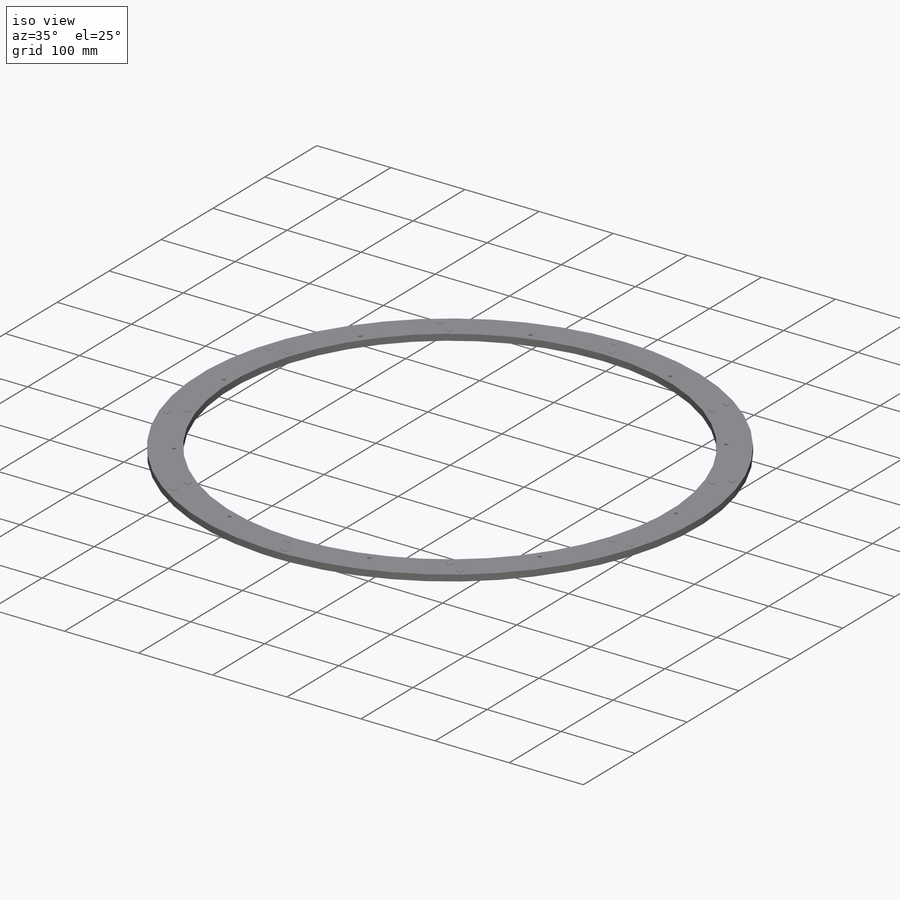
[diagram: iso view]
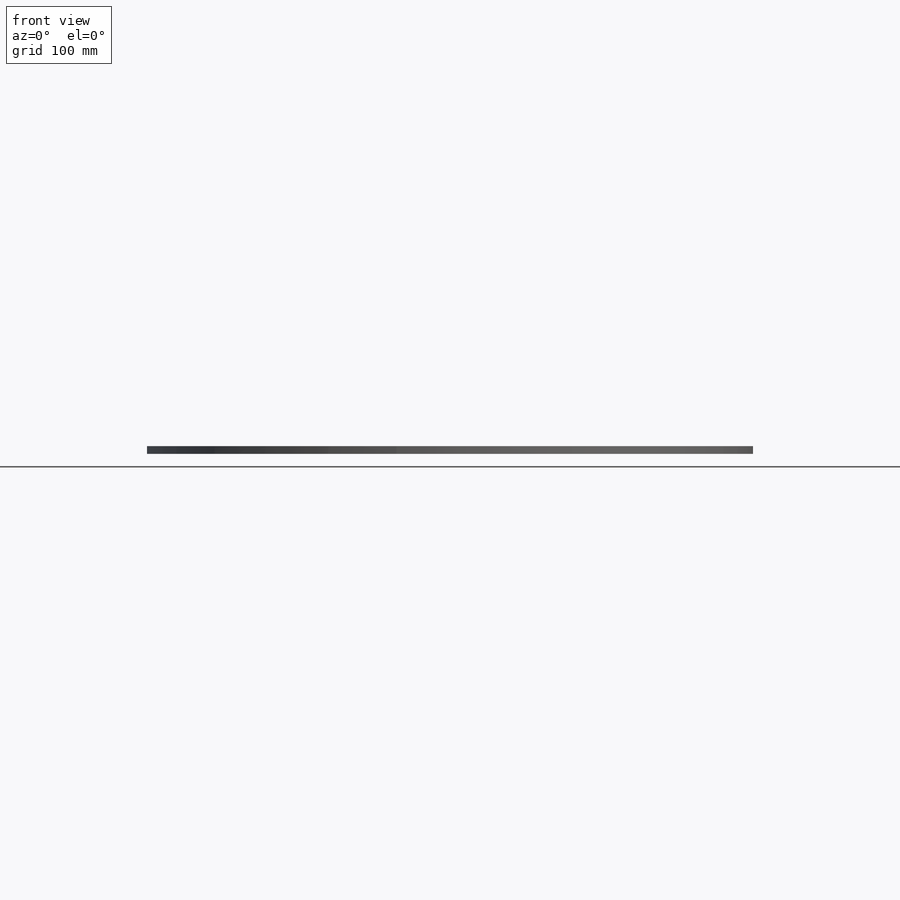
[diagram: front view]
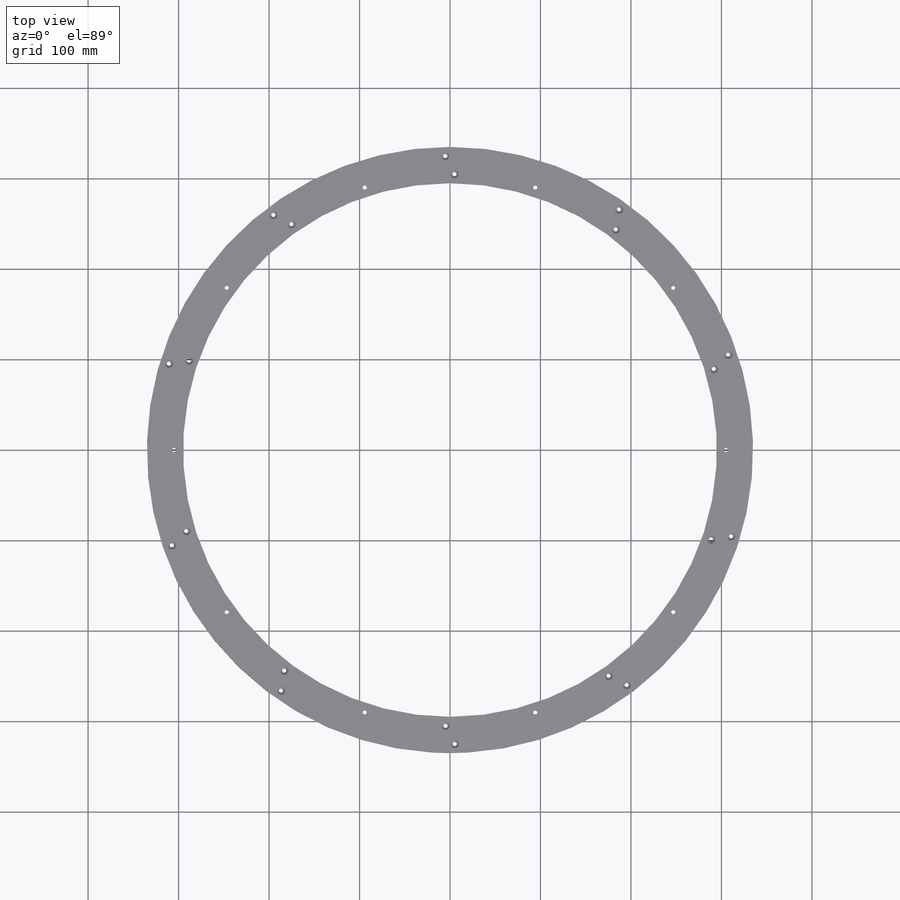
[diagram: top view]
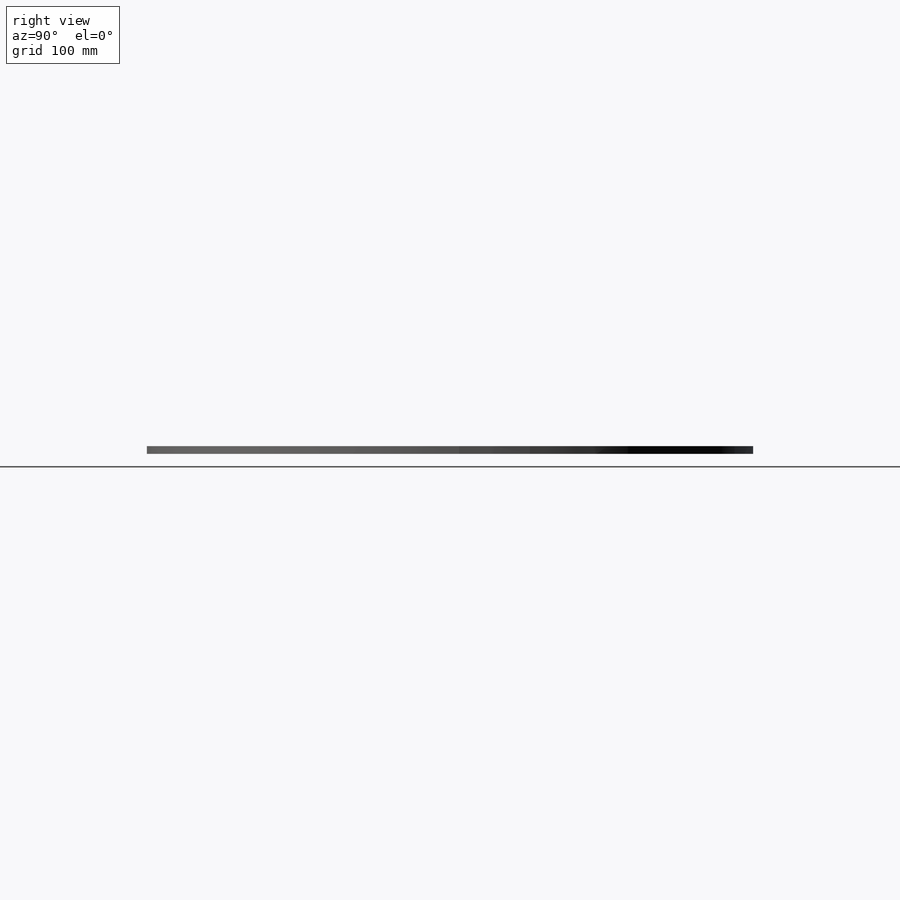
[diagram: right view]
SOLIDWORKS PART (.sldprt)
format: sldprt  version: not decoded by parser v0  size: 247,808 bytes
history: native  units: mm
features: sketch x5, hole x2, material x1, extrude x1 (+12 scaffold rows collapsed)
feature tree (21):
  scaffold x12  (default folders/planes/origin — collapsed)
  material  "Material <not specified>"
  sketch  "Sketch1"  dims[D1=590.0mm D2=670.0mm]
  extrude  "Boss-Extrude1"  Depth=8.5mm
  hole  "CBORE for M4 SHCS1"  Diameter=4.5mm Depth=32.5mm
  sketch  "Sketch2"
  sketch  "Sketch3"  dims[Thru Hole Dia.=4.5mm Thru Hole Depth=32.5mm C'Bore Dia.=8.0mm C'Bore Depth=4.0mm]
  hole  "CSK for M4 Flat Head Machine Screw1"  Diameter=4.5mm Depth=8.5mm
  sketch  "Sketch4"
  sketch  "Sketch5"  dims[Thru Hole Dia.=4.5mm Thru Hole Depth=8.5mm Near C'Sink Dia.=9.4mm Near C'Sink Angle=90.0deg]
decode coverage: 6 of 8 modeling features carry decoded parameters
note: suppression state not decoded; provenance and decode notes live in map.json
